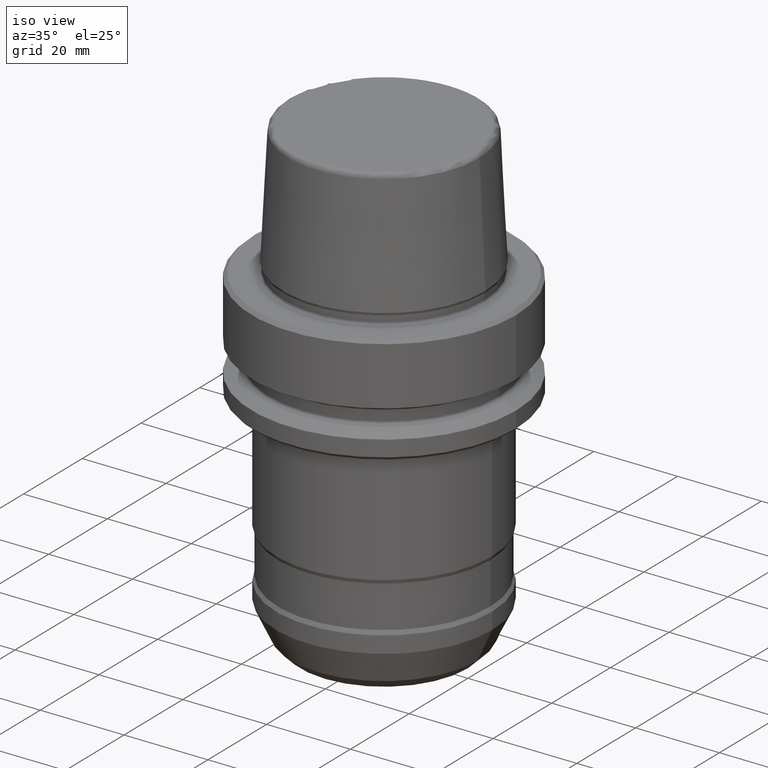
[diagram: clean part render]
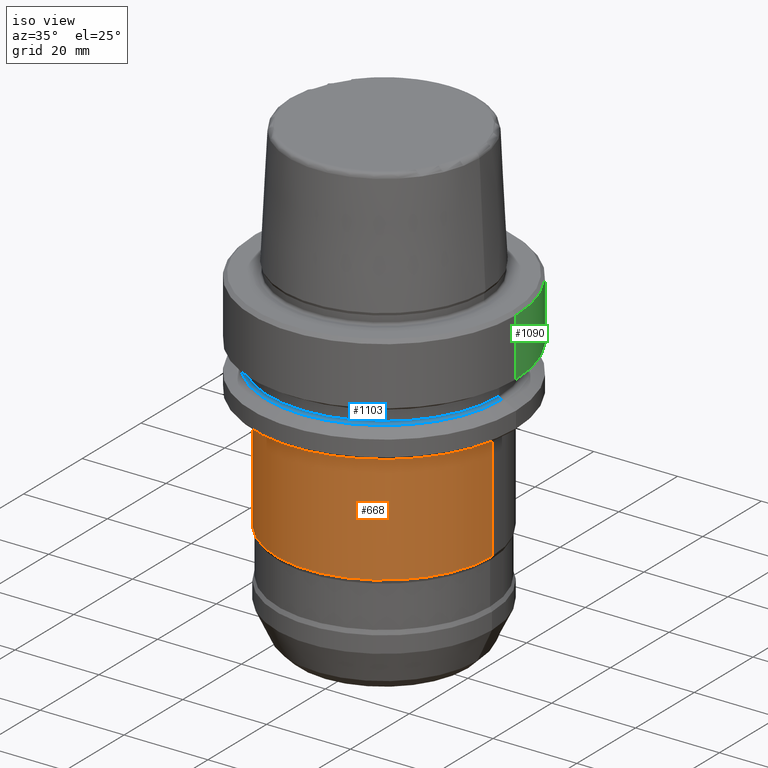
[diagram: same view with three faces highlighted in distinct colors, each labeled with its STEP entity id]
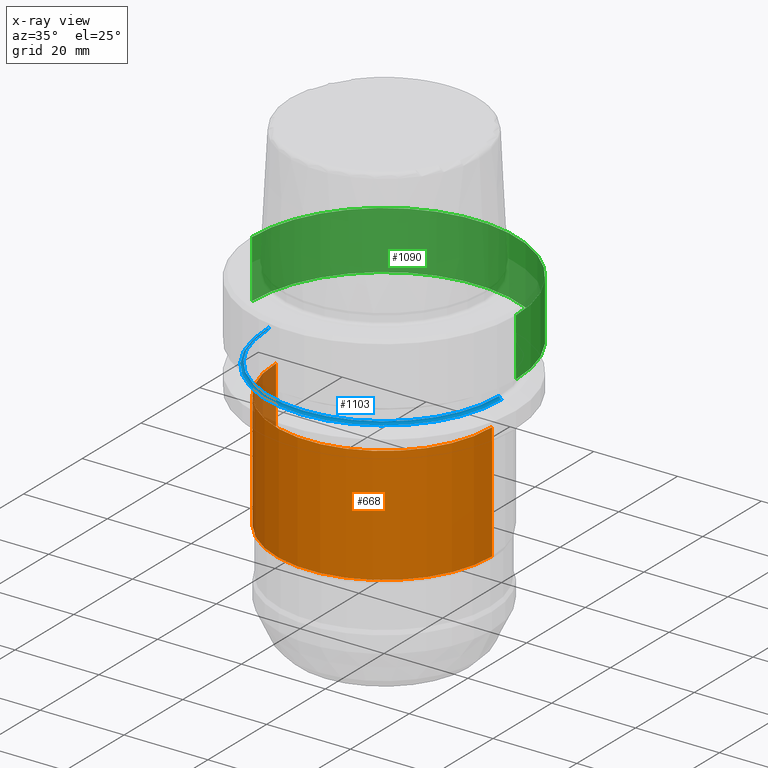
[diagram: x-ray of the same camera — body ghosted, the three highlighted faces saturated]
A machine part, iso view with three faces highlighted in distinct colors.
The next image is the same camera in x-ray (body ghosted, the three faces saturated) — at least one of them is partly hidden behind the body in this view.
Their STEP definitions:

[orange] entity #668 — the highlighted cylindrical surface (partial cylindrical patch) has radius 25.75 mm, axis along (-0, -0, 1).
#38 = VERTEX_POINT ( 'NONE', #653 ) ;
#62 = CARTESIAN_POINT ( 'NONE',  ( 25.75000000005182700, 0.0000000000000000000, 132.4507425973020500 ) ) ;
#76 = ORIENTED_EDGE ( 'NONE', *, *, #1076, .F. ) ;
#90 = DIRECTION ( 'NONE',  ( 1.000000000000000000, 0.0000000000000000000, 0.0000000000000000000 ) ) ;
#187 = CARTESIAN_POINT ( 'NONE',  ( -25.75000000005182700, 3.153465507810781600E-015, 132.4507425973020500 ) ) ;
#323 = CIRCLE ( 'NONE', #538, 25.75000000005182700 ) ;
#326 = CARTESIAN_POINT ( 'NONE',  ( 0.0000000000000000000, 0.0000000000000000000, -54.33325419939060900 ) ) ;
#345 = EDGE_CURVE ( 'NONE', #1080, #643, #369, .T. ) ;
#351 = ORIENTED_EDGE ( 'NONE', *, *, #345, .F. ) ;
#369 = CIRCLE ( 'NONE', #522, 25.75000000005182700 ) ;
#370 = DIRECTION ( 'NONE',  ( -0.0000000000000000000, -0.0000000000000000000, 1.000000000000000000 ) ) ;
#385 = VERTEX_POINT ( 'NONE', #1216 ) ;
#392 = CYLINDRICAL_SURFACE ( 'NONE', #1127, 25.75000000005182700 ) ;
#396 = EDGE_CURVE ( 'NONE', #38, #643, #907, .T. ) ;
#428 = EDGE_CURVE ( 'NONE', #385, #38, #323, .T. ) ;
#503 = DIRECTION ( 'NONE',  ( -0.0000000000000000000, -0.0000000000000000000, 1.000000000000000000 ) ) ;
#513 = ORIENTED_EDGE ( 'NONE', *, *, #396, .T. ) ;
#522 = AXIS2_PLACEMENT_3D ( 'NONE', #711, #925, #90 ) ;
#527 = DIRECTION ( 'NONE',  ( 1.000000000000000000, 0.0000000000000000000, 0.0000000000000000000 ) ) ;
#538 = AXIS2_PLACEMENT_3D ( 'NONE', #326, #544, #527 ) ;
#544 = DIRECTION ( 'NONE',  ( -0.0000000000000000000, -0.0000000000000000000, 1.000000000000000000 ) ) ;
#622 = VECTOR ( 'NONE', #503, 1000.000000000000000 ) ;
#643 = VERTEX_POINT ( 'NONE', #1168 ) ;
#653 = CARTESIAN_POINT ( 'NONE',  ( 25.75000000005182700, 0.0000000000000000000, -54.33325419939060900 ) ) ;
#668 = ADVANCED_FACE ( 'NONE', ( #674 ), #392, .T. ) ;
#670 = DIRECTION ( 'NONE',  ( -0.0000000000000000000, -0.0000000000000000000, 1.000000000000000000 ) ) ;
#674 = FACE_OUTER_BOUND ( 'NONE', #854, .T. ) ;
#711 = CARTESIAN_POINT ( 'NONE',  ( 0.0000000000000000000, 0.0000000000000000000, -26.50000000000041200 ) ) ;
#811 = LINE ( 'NONE', #187, #1367 ) ;
#854 = EDGE_LOOP ( 'NONE', ( #76, #1088, #513, #351 ) ) ;
#907 = LINE ( 'NONE', #62, #622 ) ;
#925 = DIRECTION ( 'NONE',  ( -0.0000000000000000000, -0.0000000000000000000, 1.000000000000000000 ) ) ;
#979 = DIRECTION ( 'NONE',  ( 1.000000000000000000, 0.0000000000000000000, 0.0000000000000000000 ) ) ;
#1076 = EDGE_CURVE ( 'NONE', #385, #1080, #811, .T. ) ;
#1080 = VERTEX_POINT ( 'NONE', #1269 ) ;
#1088 = ORIENTED_EDGE ( 'NONE', *, *, #428, .T. ) ;
#1127 = AXIS2_PLACEMENT_3D ( 'NONE', #1329, #670, #979 ) ;
#1168 = CARTESIAN_POINT ( 'NONE',  ( 25.75000000005182700, 0.0000000000000000000, -26.50000000000041200 ) ) ;
#1216 = CARTESIAN_POINT ( 'NONE',  ( -25.75000000005182700, 3.153465507810781600E-015, -54.33325419939060900 ) ) ;
#1269 = CARTESIAN_POINT ( 'NONE',  ( -25.75000000005182700, 3.153465507810781600E-015, -26.50000000000041200 ) ) ;
#1329 = CARTESIAN_POINT ( 'NONE',  ( 0.0000000000000000000, 0.0000000000000000000, 132.4507425973020500 ) ) ;
#1367 = VECTOR ( 'NONE', #370, 1000.000000000000000 ) ;

[blue] entity #1103 — the highlighted toroidal blend (fillet) surface has major radius 28.1 mm and minor (blend) radius 0.6 mm.
#20 = CARTESIAN_POINT ( 'NONE',  ( 0.0000000000000000000, 0.0000000000000000000, -19.29999999999987300 ) ) ;
#46 = ORIENTED_EDGE ( 'NONE', *, *, #183, .T. ) ;
#61 = AXIS2_PLACEMENT_3D ( 'NONE', #335, #386, #135 ) ;
#99 = CARTESIAN_POINT ( 'NONE',  ( -28.10000000000008300, 3.441257505604072900E-015, -19.90000000000012600 ) ) ;
#135 = DIRECTION ( 'NONE',  ( 0.0000000000000000000, 0.0000000000000000000, -1.000000000000000000 ) ) ;
#153 = DIRECTION ( 'NONE',  ( -0.0000000000000000000, -0.0000000000000000000, 1.000000000000000000 ) ) ;
#183 = EDGE_CURVE ( 'NONE', #301, #855, #1093, .T. ) ;
#194 = AXIS2_PLACEMENT_3D ( 'NONE', #231, #153, #352 ) ;
#214 = FACE_OUTER_BOUND ( 'NONE', #222, .T. ) ;
#222 = EDGE_LOOP ( 'NONE', ( #684, #46, #951, #928 ) ) ;
#231 = CARTESIAN_POINT ( 'NONE',  ( 0.0000000000000000000, 0.0000000000000000000, -19.90000000000025100 ) ) ;
#266 = DIRECTION ( 'NONE',  ( 1.224646799147353200E-016, 1.000000000000000000, 0.0000000000000000000 ) ) ;
#281 = CARTESIAN_POINT ( 'NONE',  ( -28.10000000000011200, 3.441257505604076000E-015, -19.29999999999987300 ) ) ;
#301 = VERTEX_POINT ( 'NONE', #843 ) ;
#306 = CIRCLE ( 'NONE', #61, 0.6000000000001282100 ) ;
#335 = CARTESIAN_POINT ( 'NONE',  ( 28.10000000000011200, 0.0000000000000000000, -19.29999999999987300 ) ) ;
#352 = DIRECTION ( 'NONE',  ( 1.000000000000000000, 0.0000000000000000000, 0.0000000000000000000 ) ) ;
#353 = DIRECTION ( 'NONE',  ( -1.000000000000000000, 1.224646799147354700E-016, 0.0000000000000000000 ) ) ;
#363 = VERTEX_POINT ( 'NONE', #620 ) ;
#386 = DIRECTION ( 'NONE',  ( 0.0000000000000000000, -1.000000000000000000, 0.0000000000000000000 ) ) ;
#471 = AXIS2_PLACEMENT_3D ( 'NONE', #20, #1077, #546 ) ;
#530 = EDGE_CURVE ( 'NONE', #855, #893, #1130, .T. ) ;
#546 = DIRECTION ( 'NONE',  ( 1.000000000000000000, 0.0000000000000000000, 0.0000000000000000000 ) ) ;
#620 = CARTESIAN_POINT ( 'NONE',  ( 27.50000000000023100, 0.0000000000000000000, -19.29999999999987300 ) ) ;
#684 = ORIENTED_EDGE ( 'NONE', *, *, #1213, .F. ) ;
#843 = CARTESIAN_POINT ( 'NONE',  ( -27.50000000000022700, 3.404518101629659100E-015, -19.29999999999987300 ) ) ;
#855 = VERTEX_POINT ( 'NONE', #99 ) ;
#893 = VERTEX_POINT ( 'NONE', #1047 ) ;
#928 = ORIENTED_EDGE ( 'NONE', *, *, #962, .F. ) ;
#951 = ORIENTED_EDGE ( 'NONE', *, *, #530, .T. ) ;
#962 = EDGE_CURVE ( 'NONE', #363, #893, #306, .T. ) ;
#971 = AXIS2_PLACEMENT_3D ( 'NONE', #281, #266, #353 ) ;
#1037 = CIRCLE ( 'NONE', #471, 27.50000000000023100 ) ;
#1040 = TOROIDAL_SURFACE ( 'NONE', #1139, 28.10000000000011200, 0.6000000000001282100 ) ;
#1047 = CARTESIAN_POINT ( 'NONE',  ( 28.10000000000008300, 0.0000000000000000000, -19.90000000000012600 ) ) ;
#1077 = DIRECTION ( 'NONE',  ( -0.0000000000000000000, -0.0000000000000000000, 1.000000000000000000 ) ) ;
#1093 = CIRCLE ( 'NONE', #971, 0.6000000000001282100 ) ;
#1103 = ADVANCED_FACE ( 'NONE', ( #214 ), #1040, .F. ) ;
#1130 = CIRCLE ( 'NONE', #194, 28.10000000000005500 ) ;
#1139 = AXIS2_PLACEMENT_3D ( 'NONE', #1251, #1223, #1236 ) ;
#1213 = EDGE_CURVE ( 'NONE', #301, #363, #1037, .T. ) ;
#1223 = DIRECTION ( 'NONE',  ( -0.0000000000000000000, -0.0000000000000000000, 1.000000000000000000 ) ) ;
#1236 = DIRECTION ( 'NONE',  ( 1.000000000000000000, 0.0000000000000000000, 0.0000000000000000000 ) ) ;
#1251 = CARTESIAN_POINT ( 'NONE',  ( 0.0000000000000000000, 0.0000000000000000000, -19.29999999999987300 ) ) ;

[green] entity #1090 — the highlighted cylindrical surface (partial cylindrical patch) has radius 31.5 mm, axis along (-0, -0, 1).
#65 = CARTESIAN_POINT ( 'NONE',  ( -31.50000000000012400, 3.857637417314177700E-015, -0.7999999999999118900 ) ) ;
#94 = DIRECTION ( 'NONE',  ( 1.000000000000000000, 0.0000000000000000000, 0.0000000000000000000 ) ) ;
#115 = AXIS2_PLACEMENT_3D ( 'NONE', #136, #1324, #1031 ) ;
#136 = CARTESIAN_POINT ( 'NONE',  ( 0.0000000000000000000, 0.0000000000000000000, -14.62250092524008900 ) ) ;
#243 = CIRCLE ( 'NONE', #115, 31.50000000000012400 ) ;
#310 = EDGE_LOOP ( 'NONE', ( #402, #857, #960, #1382 ) ) ;
#318 = CARTESIAN_POINT ( 'NONE',  ( 31.50000000000012400, 0.0000000000000000000, 132.4507425973020500 ) ) ;
#328 = VERTEX_POINT ( 'NONE', #1208 ) ;
#402 = ORIENTED_EDGE ( 'NONE', *, *, #508, .T. ) ;
#425 = CIRCLE ( 'NONE', #1300, 31.50000000000012400 ) ;
#508 = EDGE_CURVE ( 'NONE', #328, #1150, #243, .T. ) ;
#559 = DIRECTION ( 'NONE',  ( -0.0000000000000000000, -0.0000000000000000000, 1.000000000000000000 ) ) ;
#570 = CARTESIAN_POINT ( 'NONE',  ( 0.0000000000000000000, 0.0000000000000000000, -0.7999999999999118900 ) ) ;
#606 = VECTOR ( 'NONE', #559, 1000.000000000000000 ) ;
#693 = CARTESIAN_POINT ( 'NONE',  ( 31.50000000000012400, 0.0000000000000000000, -0.7999999999999118900 ) ) ;
#717 = CARTESIAN_POINT ( 'NONE',  ( -31.50000000000012400, 3.857637417314177700E-015, -14.62250092524008900 ) ) ;
#750 = CYLINDRICAL_SURFACE ( 'NONE', #1001, 31.50000000000012400 ) ;
#777 = DIRECTION ( 'NONE',  ( -0.0000000000000000000, -0.0000000000000000000, 1.000000000000000000 ) ) ;
#787 = VERTEX_POINT ( 'NONE', #65 ) ;
#822 = CARTESIAN_POINT ( 'NONE',  ( 0.0000000000000000000, 0.0000000000000000000, 132.4507425973020500 ) ) ;
#841 = FACE_OUTER_BOUND ( 'NONE', #310, .T. ) ;
#857 = ORIENTED_EDGE ( 'NONE', *, *, #935, .T. ) ;
#919 = DIRECTION ( 'NONE',  ( 1.000000000000000000, 0.0000000000000000000, 0.0000000000000000000 ) ) ;
#935 = EDGE_CURVE ( 'NONE', #1150, #787, #1177, .T. ) ;
#960 = ORIENTED_EDGE ( 'NONE', *, *, #1112, .F. ) ;
#1001 = AXIS2_PLACEMENT_3D ( 'NONE', #822, #777, #94 ) ;
#1005 = DIRECTION ( 'NONE',  ( -0.0000000000000000000, -0.0000000000000000000, 1.000000000000000000 ) ) ;
#1009 = DIRECTION ( 'NONE',  ( -0.0000000000000000000, -0.0000000000000000000, 1.000000000000000000 ) ) ;
#1029 = CARTESIAN_POINT ( 'NONE',  ( -31.50000000000012400, 3.857637417314177700E-015, 132.4507425973020500 ) ) ;
#1031 = DIRECTION ( 'NONE',  ( 1.000000000000000000, 0.0000000000000000000, 0.0000000000000000000 ) ) ;
#1090 = ADVANCED_FACE ( 'NONE', ( #841 ), #750, .T. ) ;
#1112 = EDGE_CURVE ( 'NONE', #1337, #787, #425, .T. ) ;
#1145 = LINE ( 'NONE', #318, #1401 ) ;
#1150 = VERTEX_POINT ( 'NONE', #717 ) ;
#1177 = LINE ( 'NONE', #1029, #606 ) ;
#1208 = CARTESIAN_POINT ( 'NONE',  ( 31.50000000000012400, 0.0000000000000000000, -14.62250092524008900 ) ) ;
#1300 = AXIS2_PLACEMENT_3D ( 'NONE', #570, #1009, #919 ) ;
#1324 = DIRECTION ( 'NONE',  ( -0.0000000000000000000, -0.0000000000000000000, 1.000000000000000000 ) ) ;
#1337 = VERTEX_POINT ( 'NONE', #693 ) ;
#1382 = ORIENTED_EDGE ( 'NONE', *, *, #1385, .F. ) ;
#1385 = EDGE_CURVE ( 'NONE', #328, #1337, #1145, .T. ) ;
#1401 = VECTOR ( 'NONE', #1005, 1000.000000000000000 ) ;